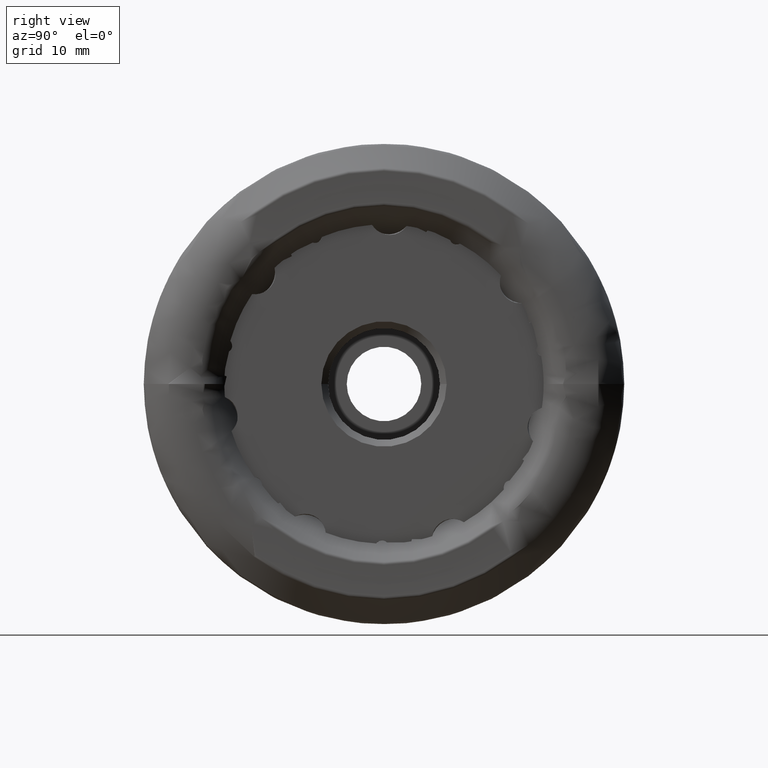
[diagram: clean part render]
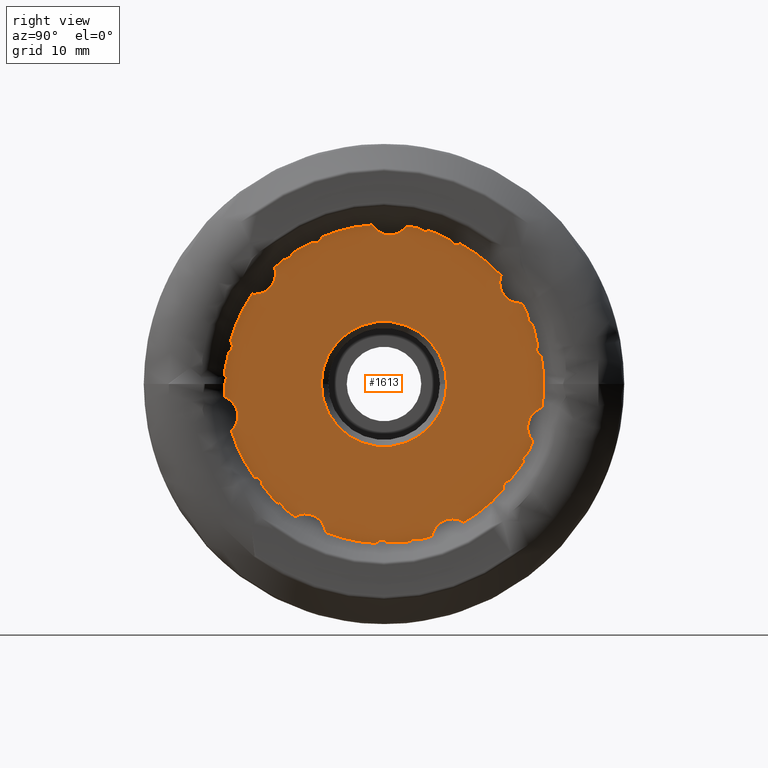
[diagram: same view with one face highlighted and labeled with its STEP entity id]
A machine part, right view. The second image highlights one B-rep face of the part: STEP entity #1613.
In plain terms, the highlighted planar face has unit normal (-1, -0, 0).
Its self-contained STEP definition (entity closure, byte-faithful):
#7 =( BOUNDED_CURVE ( )  B_SPLINE_CURVE ( 3, ( #12771, #5772, #2817, #9955 ),
 .UNSPECIFIED., .F., .F. ) 
 B_SPLINE_CURVE_WITH_KNOTS ( ( 4, 4 ),
 ( 0.1461564229964357800, 2.158327035329797200 ),
 .UNSPECIFIED. ) 
 CURVE ( )  GEOMETRIC_REPRESENTATION_ITEM ( )  RATIONAL_B_SPLINE_CURVE ( ( 1.000000000000000000, 0.6901144833169157200, 0.6901144833169157200, 1.000000000000000000 ) ) 
 REPRESENTATION_ITEM ( '' )  );
#17 = CARTESIAN_POINT ( 'NONE',  ( -2.000000000000000900, 21.50369078638228600, -9.771992317733328500 ) ) ;
#46 = EDGE_CURVE ( 'NONE', #9825, #7050, #67, .T. ) ;
#51 = DIRECTION ( 'NONE',  ( 1.000000000000000000, 1.171727135623460300E-016, -0.0000000000000000000 ) ) ;
#67 = LINE ( 'NONE', #4475, #5362 ) ;
#79 = DIRECTION ( 'NONE',  ( 1.000000000000000000, 1.171727135623460300E-016, -0.0000000000000000000 ) ) ;
#98 = VERTEX_POINT ( 'NONE', #9574 ) ;
#111 = CIRCLE ( 'NONE', #8650, 23.56486677876177500 ) ;
#117 = DIRECTION ( 'NONE',  ( -1.104222331657899600E-016, 1.000000000000000000, 0.0000000000000000000 ) ) ;
#137 = CARTESIAN_POINT ( 'NONE',  ( -1.999999999999998700, 4.948990714072315300, 23.03932371431106700 ) ) ;
#163 = VECTOR ( 'NONE', #10349, 1000.000000000000000 ) ;
#197 = CARTESIAN_POINT ( 'NONE',  ( -1.999999999999994900, 0.4226017762101578800, -23.37713243200000000 ) ) ;
#209 = EDGE_CURVE ( 'NONE', #7934, #1561, #10060, .T. ) ;
#337 = EDGE_CURVE ( 'NONE', #1981, #8421, #3436, .T. ) ;
#349 = DIRECTION ( 'NONE',  ( -1.104222331657899600E-016, 1.000000000000000000, 0.0000000000000000000 ) ) ;
#362 = CARTESIAN_POINT ( 'NONE',  ( -1.999999999999993100, -22.20470476483351500, 5.856439538509138600 ) ) ;
#365 = DIRECTION ( 'NONE',  ( 3.678892009413052500E-017, -0.2225209339563182200, 0.9749279121818227300 ) ) ;
#382 = ORIENTED_EDGE ( 'NONE', *, *, #1194, .F. ) ;
#390 = ORIENTED_EDGE ( 'NONE', *, *, #12286, .F. ) ;
#408 = DIRECTION ( 'NONE',  ( -3.678892009412834900E-017, 0.2225209339563050400, 0.9749279121818257300 ) ) ;
#409 = DIRECTION ( 'NONE',  ( 1.653279061886031000E-016, -1.000000000000000000, 0.0000000000000000000 ) ) ;
#438 = DIRECTION ( 'NONE',  ( -1.104222331657899600E-016, 1.000000000000000000, 0.0000000000000000000 ) ) ;
#452 = CIRCLE ( 'NONE', #10456, 23.56486677876177500 ) ;
#458 = ORIENTED_EDGE ( 'NONE', *, *, #5828, .T. ) ;
#493 = DIRECTION ( 'NONE',  ( 1.000000000000000000, 1.171727135623460300E-016, -0.0000000000000000000 ) ) ;
#524 = DIRECTION ( 'NONE',  ( 1.292585619887711100E-016, -0.7818314824680310200, 0.6234898018587320400 ) ) ;
#606 = CARTESIAN_POINT ( 'NONE',  ( -1.999999999999998200, -9.692287113181573900E-016, 0.0000000000000000000 ) ) ;
#621 = ORIENTED_EDGE ( 'NONE', *, *, #10964, .T. ) ;
#636 = VERTEX_POINT ( 'NONE', #5916 ) ;
#661 = CARTESIAN_POINT ( 'NONE',  ( -1.999999999999994900, -16.01633895878876100, 16.27629029937826400 ) ) ;
#665 = CARTESIAN_POINT ( 'NONE',  ( -2.000000000000004400, 23.30157998079163000, -3.512736354974612200 ) ) ;
#714 = CIRCLE ( 'NONE', #12784, 23.56486677876177500 ) ;
#745 = CIRCLE ( 'NONE', #1739, 23.56486677876177500 ) ;
#758 = DIRECTION ( 'NONE',  ( 1.000000000000000000, 1.171727135623460300E-016, -0.0000000000000000000 ) ) ;
#760 = DIRECTION ( 'NONE',  ( 1.011558380575088600E-032, -6.118497499273479500E-017, 1.000000000000000000 ) ) ;
#785 = VERTEX_POINT ( 'NONE', #7973 ) ;
#796 = VERTEX_POINT ( 'NONE', #3977 ) ;
#833 = CARTESIAN_POINT ( 'NONE',  ( -1.999999999999996700, -16.42608212106970100, -16.89635382124394200 ) ) ;
#842 = CARTESIAN_POINT ( 'NONE',  ( -1.999999999999996700, -12.81757981960705100, 19.77403838038129500 ) ) ;
#913 = CARTESIAN_POINT ( 'NONE',  ( -1.999999999999994400, -8.609754060583862100, -21.93570334675981900 ) ) ;
#930 = EDGE_LOOP ( 'NONE', ( #390, #11643 ) ) ;
#985 =( BOUNDED_CURVE ( )  B_SPLINE_CURVE ( 3, ( #6779, #12757, #12849, #6864 ),
 .UNSPECIFIED., .F., .F. ) 
 B_SPLINE_CURVE_WITH_KNOTS ( ( 4, 4 ),
 ( 0.7753974966107485300, 2.570844806628156800 ),
 .UNSPECIFIED. ) 
 CURVE ( )  GEOMETRIC_REPRESENTATION_ITEM ( )  RATIONAL_B_SPLINE_CURVE ( ( 1.000000000000000000, 0.7489276523373634700, 0.7489276523373634700, 1.000000000000000000 ) ) 
 REPRESENTATION_ITEM ( '' )  );
#1001 = EDGE_LOOP ( 'NONE', ( #10002, #2385, #5771, #458, #9855, #4978, #8352, #6601, #9830, #5076, #6013, #10681, #3749, #8272, #3657, #7807, #382, #4928, #3281, #1006, #11614, #9694, #7982, #11531, #5885, #9926, #9226, #4278, #4988, #8261, #2488, #8218, #3842, #2609, #11872, #621, #5896, #6299, #5415, #7142, #10722, #1885, #3388, #8052, #8347, #3428, #8988, #12039, #5433, #2832, #11837, #9835, #2889, #11353, #3060, #9009, #10694, #5456, #10005 ) ) ;
#1006 = ORIENTED_EDGE ( 'NONE', *, *, #2664, .T. ) ;
#1039 = CARTESIAN_POINT ( 'NONE',  ( -2.000000000003082000, -16.15035686524091600, 17.16009671959945500 ) ) ;
#1050 = AXIS2_PLACEMENT_3D ( 'NONE', #12313, #6331, #349 ) ;
#1061 = CARTESIAN_POINT ( 'NONE',  ( -1.999999999999994400, -19.46987895140102900, 13.27504274639373500 ) ) ;
#1189 = LINE ( 'NONE', #6392, #11799 ) ;
#1194 = EDGE_CURVE ( 'NONE', #1561, #9066, #8868, .T. ) ;
#1203 = CARTESIAN_POINT ( 'NONE',  ( -2.000000000003068700, -23.48588665943611900, -1.927712146759311000 ) ) ;
#1217 = CARTESIAN_POINT ( 'NONE',  ( -2.000000000003082900, 21.99645566941488200, -8.453335689780024300 ) ) ;
#1240 = VECTOR ( 'NONE', #7610, 1000.000000000000000 ) ;
#1268 = CARTESIAN_POINT ( 'NONE',  ( -1.999999999999996700, -0.7685947296030525300, -22.95116685276066100 ) ) ;
#1286 = CARTESIAN_POINT ( 'NONE',  ( -1.999999999999998200, 10.65061801459284800, 20.34480606122515000 ) ) ;
#1291 = DIRECTION ( 'NONE',  ( -1.489552964714235100E-016, 0.9009688679024218100, -0.4338837391175526200 ) ) ;
#1314 = CARTESIAN_POINT ( 'NONE',  ( -1.999999999999993100, -18.01349020744742200, -14.90580704124128400 ) ) ;
#1326 = VERTEX_POINT ( 'NONE', #833 ) ;
#1375 = CARTESIAN_POINT ( 'NONE',  ( -2.000000000000000000, 17.44674737808422900, 17.02072131289037300 ) ) ;
#1389 = CARTESIAN_POINT ( 'NONE',  ( -1.999999999999998200, 5.537501358987698900, -22.90500000000000100 ) ) ;
#1400 = EDGE_CURVE ( 'NONE', #9210, #11286, #2371, .T. ) ;
#1407 = VERTEX_POINT ( 'NONE', #6941 ) ;
#1429 = VERTEX_POINT ( 'NONE', #8949 ) ;
#1434 = EDGE_CURVE ( 'NONE', #7279, #5062, #9094, .T. ) ;
#1455 = VECTOR ( 'NONE', #6000, 1000.000000000000000 ) ;
#1510 = CARTESIAN_POINT ( 'NONE',  ( -1.999999999999994000, 17.27466535714831200, 16.02775352628465200 ) ) ;
#1561 = VERTEX_POINT ( 'NONE', #4258 ) ;
#1572 = CARTESIAN_POINT ( 'NONE',  ( -1.999999999999988000, -19.11783649036339500, -13.77720124802277200 ) ) ;
#1573 = VECTOR ( 'NONE', #524, 1000.000000000000000 ) ;
#1578 = EDGE_CURVE ( 'NONE', #1326, #9514, #11127, .T. ) ;
#1587 = CARTESIAN_POINT ( 'NONE',  ( -2.000000000003068700, -23.48588665943611900, -1.927712146759311000 ) ) ;
#1596 = EDGE_CURVE ( 'NONE', #9816, #4998, #3455, .T. ) ;
#1603 = DIRECTION ( 'NONE',  ( 1.000000000000000000, 1.171727135623460300E-016, -0.0000000000000000000 ) ) ;
#1613 = ADVANCED_FACE ( 'NONE', ( #10621, #6273 ), #7406, .F. ) ;
#1620 = DIRECTION ( 'NONE',  ( -1.104222331657899600E-016, 1.000000000000000000, 0.0000000000000000000 ) ) ;
#1635 = CARTESIAN_POINT ( 'NONE',  ( -1.999999999999998700, 9.250000000000000000, -22.90500000000000100 ) ) ;
#1662 = VERTEX_POINT ( 'NONE', #2497 ) ;
#1680 = CIRCLE ( 'NONE', #3221, 23.56486677876177500 ) ;
#1681 = CARTESIAN_POINT ( 'NONE',  ( -2.000000000000000000, 22.32186318714226300, 5.023630011642295800 ) ) ;
#1693 = EDGE_CURVE ( 'NONE', #7050, #10297, #5639, .T. ) ;
#1739 = AXIS2_PLACEMENT_3D ( 'NONE', #10343, #4375, #11342 ) ;
#1748 =( BOUNDED_CURVE ( )  B_SPLINE_CURVE ( 3, ( #5420, #7372, #362, #6426 ),
 .UNSPECIFIED., .F., .F. ) 
 B_SPLINE_CURVE_WITH_KNOTS ( ( 4, 4 ),
 ( 0.7753974966107506400, 2.570844806628151100 ),
 .UNSPECIFIED. ) 
 CURVE ( )  GEOMETRIC_REPRESENTATION_ITEM ( )  RATIONAL_B_SPLINE_CURVE ( ( 1.000000000000000000, 0.7489276523373655800, 0.7489276523373655800, 1.000000000000000000 ) ) 
 REPRESENTATION_ITEM ( '' )  );
#1758 = DIRECTION ( 'NONE',  ( -1.489552964714225300E-016, 0.9009688679024157000, 0.4338837391175651700 ) ) ;
#1774 = CARTESIAN_POINT ( 'NONE',  ( -1.999999999999993100, -10.52370867332828100, 20.87870850324410200 ) ) ;
#1790 = CARTESIAN_POINT ( 'NONE',  ( -2.000000000000002700, 21.43091610487660900, 9.039157215310337900 ) ) ;
#1885 = ORIENTED_EDGE ( 'NONE', *, *, #5706, .F. ) ;
#1906 = CARTESIAN_POINT ( 'NONE',  ( -2.000000000000000000, 9.250000000000000000, 0.0000000000000000000 ) ) ;
#1945 = CARTESIAN_POINT ( 'NONE',  ( -2.000000000000001300, 20.42905532178830400, -11.11954256777991600 ) ) ;
#1959 = VERTEX_POINT ( 'NONE', #3290 ) ;
#1981 = VERTEX_POINT ( 'NONE', #5298 ) ;
#2007 = VERTEX_POINT ( 'NONE', #6389 ) ;
#2025 = CARTESIAN_POINT ( 'NONE',  ( -2.000000000000000900, 22.13044178610697800, 8.096078844262852000 ) ) ;
#2050 = CARTESIAN_POINT ( 'NONE',  ( -1.999999999999995300, -16.06134589859433200, 16.87359393577513000 ) ) ;
#2082 = EDGE_CURVE ( 'NONE', #10369, #1429, #7838, .T. ) ;
#2095 = CARTESIAN_POINT ( 'NONE',  ( -2.000000000000000900, -1.760424619383038400, 23.49901809566221500 ) ) ;
#2249 = VERTEX_POINT ( 'NONE', #3980 ) ;
#2250 = CARTESIAN_POINT ( 'NONE',  ( -2.000000000000004400, 23.30157998079163000, -3.512736354974612200 ) ) ;
#2315 =( BOUNDED_CURVE ( )  B_SPLINE_CURVE ( 3, ( #1217, #5214, #8243, #2250 ),
 .UNSPECIFIED., .F., .T. ) 
 B_SPLINE_CURVE_WITH_KNOTS ( ( 4, 4 ),
 ( 0.1461564229964352500, 2.158327035329792300 ),
 .UNSPECIFIED. ) 
 CURVE ( )  GEOMETRIC_REPRESENTATION_ITEM ( )  RATIONAL_B_SPLINE_CURVE ( ( 1.000000000000000000, 0.6901144833169170500, 0.6901144833169170500, 1.000000000000000000 ) ) 
 REPRESENTATION_ITEM ( '' )  );
#2348 =( BOUNDED_CURVE ( )  B_SPLINE_CURVE ( 3, ( #7533, #5497, #8527, #2531 ),
 .UNSPECIFIED., .F., .F. ) 
 B_SPLINE_CURVE_WITH_KNOTS ( ( 4, 4 ),
 ( 0.7753974966107519700, 2.570844806628149300 ),
 .UNSPECIFIED. ) 
 CURVE ( )  GEOMETRIC_REPRESENTATION_ITEM ( )  RATIONAL_B_SPLINE_CURVE ( ( 1.000000000000000000, 0.7489276523373664700, 0.7489276523373664700, 1.000000000000000000 ) ) 
 REPRESENTATION_ITEM ( '' )  );
#2351 = DIRECTION ( 'NONE',  ( -3.678892009413052500E-017, 0.2225209339563182200, -0.9749279121818227300 ) ) ;
#2369 = DIRECTION ( 'NONE',  ( 1.030802634712530300E-016, -0.6234898018587431400, 0.7818314824680220300 ) ) ;
#2371 = LINE ( 'NONE', #9894, #5342 ) ;
#2385 = ORIENTED_EDGE ( 'NONE', *, *, #9207, .T. ) ;
#2411 = VERTEX_POINT ( 'NONE', #4044 ) ;
#2488 = ORIENTED_EDGE ( 'NONE', *, *, #1693, .T. ) ;
#2497 = CARTESIAN_POINT ( 'NONE',  ( -1.999999999999994000, 17.27466535714831200, 16.02775352628465200 ) ) ;
#2531 = CARTESIAN_POINT ( 'NONE',  ( -1.999999999999988000, -19.11783649036339500, -13.77720124802277200 ) ) ;
#2544 = CARTESIAN_POINT ( 'NONE',  ( -2.000000000000000400, 11.78192961329005700, -20.40806411417479500 ) ) ;
#2547 = CARTESIAN_POINT ( 'NONE',  ( -1.999999999999998200, -9.692287113181573900E-016, 0.0000000000000000000 ) ) ;
#2558 = DIRECTION ( 'NONE',  ( 1.000000000000000000, 1.171727135623460300E-016, -0.0000000000000000000 ) ) ;
#2564 = CARTESIAN_POINT ( 'NONE',  ( -1.999999999999998200, -9.692287113181573900E-016, 0.0000000000000000000 ) ) ;
#2584 = CARTESIAN_POINT ( 'NONE',  ( -1.999999999999998200, 20.09540539221797700, 11.91818211773242100 ) ) ;
#2609 = ORIENTED_EDGE ( 'NONE', *, *, #4200, .F. ) ;
#2618 = VECTOR ( 'NONE', #2351, 1000.000000000000000 ) ;
#2664 = EDGE_CURVE ( 'NONE', #2411, #2249, #3433, .T. ) ;
#2673 = CARTESIAN_POINT ( 'NONE',  ( -2.000000000000000000, 22.69698117279385500, 5.613907609354075800 ) ) ;
#2692 = EDGE_CURVE ( 'NONE', #4998, #9168, #1748, .T. ) ;
#2705 = CARTESIAN_POINT ( 'NONE',  ( -1.999999999999994900, -9.864758962872423700, 20.64434463100725400 ) ) ;
#2739 = CARTESIAN_POINT ( 'NONE',  ( -1.999999999999994400, -19.46987895140102900, 13.27504274639373500 ) ) ;
#2779 = LINE ( 'NONE', #8363, #7789 ) ;
#2811 = DIRECTION ( 'NONE',  ( 1.000000000000000000, 1.653279061886031000E-016, -0.0000000000000000000 ) ) ;
#2817 = CARTESIAN_POINT ( 'NONE',  ( -1.999999999999997300, -0.4953517499483098300, 21.38361911109226600 ) ) ;
#2832 = ORIENTED_EDGE ( 'NONE', *, *, #12036, .F. ) ;
#2842 = CARTESIAN_POINT ( 'NONE',  ( -2.000000000003075800, 7.105481812777243000, -22.46809013932725900 ) ) ;
#2861 = CARTESIAN_POINT ( 'NONE',  ( -1.999999999999998200, 7.892173290400736900, -5.949027516459504600 ) ) ;
#2889 = ORIENTED_EDGE ( 'NONE', *, *, #7691, .T. ) ;
#2971 = EDGE_CURVE ( 'NONE', #1662, #8421, #3910, .T. ) ;
#3014 = DIRECTION ( 'NONE',  ( -1.030802634712511800E-016, 0.6234898018587320400, 0.7818314824680310200 ) ) ;
#3025 = VERTEX_POINT ( 'NONE', #8661 ) ;
#3060 = ORIENTED_EDGE ( 'NONE', *, *, #11136, .T. ) ;
#3096 = VERTEX_POINT ( 'NONE', #8711 ) ;
#3119 = VERTEX_POINT ( 'NONE', #1945 ) ;
#3126 = DIRECTION ( 'NONE',  ( 1.000000000000000000, 1.171727135623460300E-016, -0.0000000000000000000 ) ) ;
#3221 = AXIS2_PLACEMENT_3D ( 'NONE', #5552, #12560, #6578 ) ;
#3252 = AXIS2_PLACEMENT_3D ( 'NONE', #7578, #1603, #8578 ) ;
#3275 = EDGE_CURVE ( 'NONE', #98, #11009, #452, .T. ) ;
#3281 = ORIENTED_EDGE ( 'NONE', *, *, #12023, .T. ) ;
#3290 = CARTESIAN_POINT ( 'NONE',  ( -1.999999999999994900, 23.20227909153350900, 4.117911031017719400 ) ) ;
#3388 = ORIENTED_EDGE ( 'NONE', *, *, #12358, .F. ) ;
#3398 = CARTESIAN_POINT ( 'NONE',  ( -2.000000000000000900, 23.56486677876177500, 0.0000000000000000000 ) ) ;
#3399 = EDGE_CURVE ( 'NONE', #2249, #12014, #12489, .T. ) ;
#3420 = CARTESIAN_POINT ( 'NONE',  ( -1.999999999999998700, 9.250000000000000000, 0.0000000000000000000 ) ) ;
#3428 = ORIENTED_EDGE ( 'NONE', *, *, #4646, .T. ) ;
#3433 = LINE ( 'NONE', #12340, #5792 ) ;
#3436 =( BOUNDED_CURVE ( )  B_SPLINE_CURVE ( 3, ( #6239, #7263, #1286, #8262 ),
 .UNSPECIFIED., .F., .F. ) 
 B_SPLINE_CURVE_WITH_KNOTS ( ( 4, 4 ),
 ( 0.7753974966107530800, 2.570844806628152800 ),
 .UNSPECIFIED. ) 
 CURVE ( )  GEOMETRIC_REPRESENTATION_ITEM ( )  RATIONAL_B_SPLINE_CURVE ( ( 1.000000000000000000, 0.7489276523373658000, 0.7489276523373658000, 1.000000000000000000 ) ) 
 REPRESENTATION_ITEM ( '' )  );
#3455 = LINE ( 'NONE', #12381, #10818 ) ;
#3478 = EDGE_CURVE ( 'NONE', #4984, #9210, #4211, .T. ) ;
#3552 = DIRECTION ( 'NONE',  ( -1.104222331657899600E-016, 1.000000000000000000, 0.0000000000000000000 ) ) ;
#3561 = CARTESIAN_POINT ( 'NONE',  ( -2.000000000003082900, 21.99645566941488200, -8.453335689780024300 ) ) ;
#3573 = CARTESIAN_POINT ( 'NONE',  ( -2.000000000003073100, -13.13606477429599600, -19.56391444844673800 ) ) ;
#3638 = EDGE_CURVE ( 'NONE', #8969, #6513, #11535, .T. ) ;
#3657 = ORIENTED_EDGE ( 'NONE', *, *, #8887, .T. ) ;
#3659 = VERTEX_POINT ( 'NONE', #1572 ) ;
#3669 = VERTEX_POINT ( 'NONE', #10537 ) ;
#3749 = ORIENTED_EDGE ( 'NONE', *, *, #7630, .T. ) ;
#3842 = ORIENTED_EDGE ( 'NONE', *, *, #10411, .T. ) ;
#3875 = CARTESIAN_POINT ( 'NONE',  ( -1.999999999999994900, -11.01796890392451200, -18.33529850907320500 ) ) ;
#3910 = CIRCLE ( 'NONE', #11629, 23.56486677876177500 ) ;
#3953 = DIRECTION ( 'NONE',  ( 1.000000000000000000, 1.171727135623460300E-016, -0.0000000000000000000 ) ) ;
#3977 = CARTESIAN_POINT ( 'NONE',  ( -1.999999999999997800, 2.968606669386217000, -23.37713243200000000 ) ) ;
#3980 = CARTESIAN_POINT ( 'NONE',  ( -1.999999999999995800, -13.58135413900240700, 18.88219658854230300 ) ) ;
#4044 = CARTESIAN_POINT ( 'NONE',  ( -1.999999999999996200, -13.71600030822957600, 19.16179223990899800 ) ) ;
#4077 = CARTESIAN_POINT ( 'NONE',  ( -2.000000000003074900, 3.346721055722366300, 23.32600275391880000 ) ) ;
#4127 = DIRECTION ( 'NONE',  ( 1.000000000000000000, 1.171727135623460300E-016, -0.0000000000000000000 ) ) ;
#4183 = DIRECTION ( 'NONE',  ( 1.030802634712512000E-016, -0.6234898018587320400, -0.7818314824680309100 ) ) ;
#4200 = EDGE_CURVE ( 'NONE', #9514, #3659, #2348, .T. ) ;
#4211 = CIRCLE ( 'NONE', #12907, 23.56486677876177500 ) ;
#4224 = LINE ( 'NONE', #12497, #1573 ) ;
#4242 = CARTESIAN_POINT ( 'NONE',  ( -2.000000000000002200, 21.73346330084872200, 9.108211638486009700 ) ) ;
#4258 = CARTESIAN_POINT ( 'NONE',  ( -1.999999999999993100, -10.52370867332828100, 20.87870850324410200 ) ) ;
#4259 = CARTESIAN_POINT ( 'NONE',  ( -1.999999999999998200, -3.306558123772058100E-016, 0.0000000000000000000 ) ) ;
#4274 = VERTEX_POINT ( 'NONE', #7460 ) ;
#4278 = ORIENTED_EDGE ( 'NONE', *, *, #5516, .T. ) ;
#4283 = DIRECTION ( 'NONE',  ( 1.000000000000000000, 1.171727135623460300E-016, -0.0000000000000000000 ) ) ;
#4332 = DIRECTION ( 'NONE',  ( 1.000000000000000000, 1.171727135623460300E-016, -0.0000000000000000000 ) ) ;
#4337 = VERTEX_POINT ( 'NONE', #2544 ) ;
#4363 = VERTEX_POINT ( 'NONE', #7684 ) ;
#4375 = DIRECTION ( 'NONE',  ( 1.000000000000000000, 1.171727135623460300E-016, -0.0000000000000000000 ) ) ;
#4437 = AXIS2_PLACEMENT_3D ( 'NONE', #6750, #758, #7752 ) ;
#4475 = CARTESIAN_POINT ( 'NONE',  ( -1.999999999999993600, -21.87270484257344800, 7.103554285687793300 ) ) ;
#4490 =( BOUNDED_CURVE ( )  B_SPLINE_CURVE ( 3, ( #1039, #2050, #11031, #5045 ),
 .UNSPECIFIED., .F., .T. ) 
 B_SPLINE_CURVE_WITH_KNOTS ( ( 4, 4 ),
 ( 0.1461564229964404900, 0.4449876211303597200 ),
 .UNSPECIFIED. ) 
 CURVE ( )  GEOMETRIC_REPRESENTATION_ITEM ( )  RATIONAL_B_SPLINE_CURVE ( ( 1.000000000000000000, 0.9925721605802505500, 0.9925721605802505500, 1.000000000000000000 ) ) 
 REPRESENTATION_ITEM ( '' )  );
#4646 = EDGE_CURVE ( 'NONE', #3096, #5908, #9493, .T. ) ;
#4658 = VERTEX_POINT ( 'NONE', #665 ) ;
#4679 = VERTEX_POINT ( 'NONE', #2673 ) ;
#4754 = VECTOR ( 'NONE', #1758, 1000.000000000000100 ) ;
#4775 = EDGE_CURVE ( 'NONE', #5590, #9066, #5905, .T. ) ;
#4813 = VERTEX_POINT ( 'NONE', #1061 ) ;
#4844 = DIRECTION ( 'NONE',  ( 1.000000000000000000, 1.171727135623460300E-016, -0.0000000000000000000 ) ) ;
#4863 = CIRCLE ( 'NONE', #12342, 23.56486677876177500 ) ;
#4918 = EDGE_CURVE ( 'NONE', #4984, #1981, #10276, .T. ) ;
#4928 = ORIENTED_EDGE ( 'NONE', *, *, #209, .F. ) ;
#4978 = ORIENTED_EDGE ( 'NONE', *, *, #2082, .T. ) ;
#4984 = VERTEX_POINT ( 'NONE', #5323 ) ;
#4988 = ORIENTED_EDGE ( 'NONE', *, *, #10128, .T. ) ;
#4998 = VERTEX_POINT ( 'NONE', #6328 ) ;
#5045 = CARTESIAN_POINT ( 'NONE',  ( -1.999999999999994900, -16.01633895878876100, 16.27629029937826400 ) ) ;
#5062 = VERTEX_POINT ( 'NONE', #6412 ) ;
#5076 = ORIENTED_EDGE ( 'NONE', *, *, #4918, .F. ) ;
#5089 = EDGE_CURVE ( 'NONE', #785, #7279, #11689, .T. ) ;
#5121 = LINE ( 'NONE', #17, #7472 ) ;
#5136 = CARTESIAN_POINT ( 'NONE',  ( -1.999999999999998200, -9.692287113181573900E-016, 0.0000000000000000000 ) ) ;
#5185 = EDGE_CURVE ( 'NONE', #3119, #9775, #5121, .T. ) ;
#5212 = CARTESIAN_POINT ( 'NONE',  ( -1.999999999999996700, -0.06940472522369046900, -22.88007031509052400 ) ) ;
#5214 = CARTESIAN_POINT ( 'NONE',  ( -2.000000000000000900, 20.32732302548409800, -6.661737671380805600 ) ) ;
#5242 = CARTESIAN_POINT ( 'NONE',  ( -2.000000000000000000, 17.65159796303905200, 17.44609793564942600 ) ) ;
#5261 = DIRECTION ( 'NONE',  ( -1.875376730785737500E-016, 1.000000000000000000, 0.0000000000000000000 ) ) ;
#5266 = VECTOR ( 'NONE', #11839, 1000.000000000000000 ) ;
#5269 = DIRECTION ( 'NONE',  ( 1.000000000000000000, 1.171727135623460300E-016, -0.0000000000000000000 ) ) ;
#5298 = CARTESIAN_POINT ( 'NONE',  ( -1.999999999999994900, 9.762206585556748800, 21.24542858088381100 ) ) ;
#5312 = CARTESIAN_POINT ( 'NONE',  ( -2.000000000003075800, 7.105481812777243000, -22.46809013932725900 ) ) ;
#5323 = CARTESIAN_POINT ( 'NONE',  ( -1.999999999999999100, 7.468335439277913300, 22.35009870374661000 ) ) ;
#5330 = EDGE_CURVE ( 'NONE', #8846, #2007, #5563, .T. ) ;
#5342 = VECTOR ( 'NONE', #11903, 1000.000000000000000 ) ;
#5362 = VECTOR ( 'NONE', #11444, 1000.000000000000000 ) ;
#5415 = ORIENTED_EDGE ( 'NONE', *, *, #10425, .T. ) ;
#5420 = CARTESIAN_POINT ( 'NONE',  ( -1.999999999999991300, -22.88505665666168600, 4.789895074623967000 ) ) ;
#5433 = ORIENTED_EDGE ( 'NONE', *, *, #8710, .T. ) ;
#5448 =( BOUNDED_CURVE ( )  B_SPLINE_CURVE ( 3, ( #6470, #9437, #7500, #1510 ),
 .UNSPECIFIED., .F., .F. ) 
 B_SPLINE_CURVE_WITH_KNOTS ( ( 4, 4 ),
 ( 0.2222871971657807100, 2.158327035329799400 ),
 .UNSPECIFIED. ) 
 CURVE ( )  GEOMETRIC_REPRESENTATION_ITEM ( )  RATIONAL_B_SPLINE_CURVE ( ( 1.000000000000000000, 0.7112878415754636500, 0.7112878415754636500, 1.000000000000000000 ) ) 
 REPRESENTATION_ITEM ( '' )  );
#5456 = ORIENTED_EDGE ( 'NONE', *, *, #6933, .T. ) ;
#5479 = EDGE_CURVE ( 'NONE', #10996, #4337, #6120, .T. ) ;
#5497 = CARTESIAN_POINT ( 'NONE',  ( -1.999999999999993100, -17.93163243179759900, -14.21122770805798700 ) ) ;
#5516 = EDGE_CURVE ( 'NONE', #9816, #1407, #6686, .T. ) ;
#5527 = LINE ( 'NONE', #7706, #7906 ) ;
#5552 = CARTESIAN_POINT ( 'NONE',  ( -1.999999999999998200, -9.692287113181573900E-016, 0.0000000000000000000 ) ) ;
#5563 = LINE ( 'NONE', #10169, #11207 ) ;
#5590 = VERTEX_POINT ( 'NONE', #2095 ) ;
#5597 = DIRECTION ( 'NONE',  ( 1.000000000000000000, 1.171727135623460300E-016, -0.0000000000000000000 ) ) ;
#5639 = CIRCLE ( 'NONE', #3252, 23.56486677876177500 ) ;
#5667 = CARTESIAN_POINT ( 'NONE',  ( -1.999999999999994900, 23.20227909153350900, 4.117911031017719400 ) ) ;
#5706 = EDGE_CURVE ( 'NONE', #6457, #11009, #11083, .T. ) ;
#5728 = CARTESIAN_POINT ( 'NONE',  ( -2.000000000000000900, 20.12787408925412100, -12.25445351486238000 ) ) ;
#5771 = ORIENTED_EDGE ( 'NONE', *, *, #6491, .T. ) ;
#5772 = CARTESIAN_POINT ( 'NONE',  ( -1.999999999999998000, 1.971459094999782300, 21.30005068588833700 ) ) ;
#5792 = VECTOR ( 'NONE', #9401, 1000.000000000000100 ) ;
#5825 = CARTESIAN_POINT ( 'NONE',  ( -1.999999999999995800, -23.45159604334853800, 2.307723839715149600 ) ) ;
#5828 = EDGE_CURVE ( 'NONE', #8438, #636, #2779, .T. ) ;
#5831 = CARTESIAN_POINT ( 'NONE',  ( -1.999999999999998000, 9.724301121150691800, -19.05105003273138600 ) ) ;
#5832 = EDGE_CURVE ( 'NONE', #636, #10369, #111, .T. ) ;
#5834 = CARTESIAN_POINT ( 'NONE',  ( -2.000000000003073100, -13.13606477429599600, -19.56391444844673800 ) ) ;
#5860 = VERTEX_POINT ( 'NONE', #3561 ) ;
#5885 = ORIENTED_EDGE ( 'NONE', *, *, #12209, .T. ) ;
#5896 = ORIENTED_EDGE ( 'NONE', *, *, #5089, .T. ) ;
#5905 = CIRCLE ( 'NONE', #6976, 23.56486677876177500 ) ;
#5908 = VERTEX_POINT ( 'NONE', #1389 ) ;
#5916 = CARTESIAN_POINT ( 'NONE',  ( -2.000000000000000900, 21.09851385433833200, 10.49550663089132700 ) ) ;
#6000 = DIRECTION ( 'NONE',  ( -1.030802634712530200E-016, 0.6234898018587431400, -0.7818314824680221400 ) ) ;
#6013 = ORIENTED_EDGE ( 'NONE', *, *, #3478, .T. ) ;
#6024 = CARTESIAN_POINT ( 'NONE',  ( -1.999999999999998200, -9.692287113181573900E-016, 0.0000000000000000000 ) ) ;
#6050 = CARTESIAN_POINT ( 'NONE',  ( -1.999999999999998200, -9.692287113181573900E-016, 0.0000000000000000000 ) ) ;
#6093 = DIRECTION ( 'NONE',  ( 1.000000000000000000, 1.171727135623460300E-016, -0.0000000000000000000 ) ) ;
#6120 =( BOUNDED_CURVE ( )  B_SPLINE_CURVE ( 3, ( #2842, #8827, #5831, #12844 ),
 .UNSPECIFIED., .F., .T. ) 
 B_SPLINE_CURVE_WITH_KNOTS ( ( 4, 4 ),
 ( 0.1461564229964363000, 2.158327035329802100 ),
 .UNSPECIFIED. ) 
 CURVE ( )  GEOMETRIC_REPRESENTATION_ITEM ( )  RATIONAL_B_SPLINE_CURVE ( ( 1.000000000000000000, 0.6901144833169146100, 0.6901144833169146100, 1.000000000000000000 ) ) 
 REPRESENTATION_ITEM ( '' )  );
#6130 = DIRECTION ( 'NONE',  ( -1.104222331657899600E-016, 1.000000000000000000, 0.0000000000000000000 ) ) ;
#6239 = CARTESIAN_POINT ( 'NONE',  ( -1.999999999999994900, 9.762206585556748800, 21.24542858088381100 ) ) ;
#6273 = FACE_OUTER_BOUND ( 'NONE', #1001, .T. ) ;
#6299 = ORIENTED_EDGE ( 'NONE', *, *, #1434, .T. ) ;
#6328 = CARTESIAN_POINT ( 'NONE',  ( -1.999999999999991300, -22.88505665666168600, 4.789895074623967000 ) ) ;
#6330 = VERTEX_POINT ( 'NONE', #12554 ) ;
#6331 = DIRECTION ( 'NONE',  ( 1.000000000000000000, 1.171727135623460300E-016, -0.0000000000000000000 ) ) ;
#6368 = CARTESIAN_POINT ( 'NONE',  ( -1.999999999999990500, -22.69122576134634900, 6.356981968544659800 ) ) ;
#6369 = VECTOR ( 'NONE', #8470, 1000.000000000000100 ) ;
#6389 = CARTESIAN_POINT ( 'NONE',  ( -1.999999999999998200, 18.54046600287646700, -14.24500029486500800 ) ) ;
#6392 = CARTESIAN_POINT ( 'NONE',  ( -1.999999999999998700, 9.250000000000000000, -23.37713243200000000 ) ) ;
#6412 = CARTESIAN_POINT ( 'NONE',  ( -1.999999999999996700, -14.45527448082230200, -18.61042680824053300 ) ) ;
#6420 = DIRECTION ( 'NONE',  ( 1.000000000000000000, 1.171727135623460300E-016, -0.0000000000000000000 ) ) ;
#6426 = CARTESIAN_POINT ( 'NONE',  ( -1.999999999999990500, -22.69122576134634900, 6.356981968544659800 ) ) ;
#6428 = DIRECTION ( 'NONE',  ( 1.653279061886031000E-016, -1.000000000000000000, 0.0000000000000000000 ) ) ;
#6432 = CARTESIAN_POINT ( 'NONE',  ( -1.999999999999997100, -2.429466710891245100, 24.25266252571951500 ) ) ;
#6445 = CARTESIAN_POINT ( 'NONE',  ( -1.999999999999999600, 6.429506119200096800, 22.67078290143414800 ) ) ;
#6448 = CARTESIAN_POINT ( 'NONE',  ( -1.999999999999998700, 8.175364535405933000, 1.347550250046658100 ) ) ;
#6457 = VERTEX_POINT ( 'NONE', #11896 ) ;
#6466 = CARTESIAN_POINT ( 'NONE',  ( -1.999999999999998200, -9.692287113181573900E-016, 0.0000000000000000000 ) ) ;
#6470 = CARTESIAN_POINT ( 'NONE',  ( -1.999999999999998200, 20.09540539221797700, 11.91818211773242100 ) ) ;
#6484 = AXIS2_PLACEMENT_3D ( 'NONE', #10112, #4127, #11121 ) ;
#6491 = EDGE_CURVE ( 'NONE', #9033, #8438, #10730, .T. ) ;
#6513 = VERTEX_POINT ( 'NONE', #4077 ) ;
#6562 = CARTESIAN_POINT ( 'NONE',  ( -2.000000000003075300, 20.32364976105849800, 11.92695295079468000 ) ) ;
#6578 = DIRECTION ( 'NONE',  ( -1.104222331657899600E-016, 1.000000000000000000, 0.0000000000000000000 ) ) ;
#6591 = CARTESIAN_POINT ( 'NONE',  ( -1.999999999999994400, -22.51811731986202900, -6.945310552431750200 ) ) ;
#6601 = ORIENTED_EDGE ( 'NONE', *, *, #2971, .T. ) ;
#6672 = EDGE_CURVE ( 'NONE', #5908, #10996, #10325, .T. ) ;
#6686 = CIRCLE ( 'NONE', #8237, 23.56486677876177500 ) ;
#6750 = CARTESIAN_POINT ( 'NONE',  ( -1.999999999999998200, -9.692287113181573900E-016, 0.0000000000000000000 ) ) ;
#6779 = CARTESIAN_POINT ( 'NONE',  ( -1.999999999999998200, 18.54046600287646700, -14.24500029486500800 ) ) ;
#6864 = CARTESIAN_POINT ( 'NONE',  ( -1.999999999999998200, 17.68589687950326100, -15.57279672596952500 ) ) ;
#6903 = EDGE_CURVE ( 'NONE', #3669, #11511, #4490, .T. ) ;
#6912 = CARTESIAN_POINT ( 'NONE',  ( -1.999999999999995600, -8.831708110421850200, -19.48090017162338600 ) ) ;
#6933 = EDGE_CURVE ( 'NONE', #10457, #1959, #12845, .T. ) ;
#6939 = EDGE_CURVE ( 'NONE', #4658, #10457, #4863, .T. ) ;
#6941 = CARTESIAN_POINT ( 'NONE',  ( -1.999999999999994400, -23.53307874814482800, 1.223581192403959700 ) ) ;
#6976 = AXIS2_PLACEMENT_3D ( 'NONE', #6024, #51, #7059 ) ;
#7020 = EDGE_CURVE ( 'NONE', #5860, #4658, #2315, .T. ) ;
#7050 = VERTEX_POINT ( 'NONE', #7244 ) ;
#7059 = DIRECTION ( 'NONE',  ( -1.104222331657899600E-016, 1.000000000000000000, 0.0000000000000000000 ) ) ;
#7079 = DIRECTION ( 'NONE',  ( -1.104222331657899600E-016, 1.000000000000000000, 0.0000000000000000000 ) ) ;
#7127 = CIRCLE ( 'NONE', #9856, 9.250000000000000000 ) ;
#7142 = ORIENTED_EDGE ( 'NONE', *, *, #12064, .T. ) ;
#7194 = EDGE_CURVE ( 'NONE', #1429, #1662, #5448, .T. ) ;
#7244 = CARTESIAN_POINT ( 'NONE',  ( -1.999999999999995800, -23.56293380271096900, -0.3018226463527076700 ) ) ;
#7263 = CARTESIAN_POINT ( 'NONE',  ( -1.999999999999998200, 9.989821956295864800, 20.58411746762244500 ) ) ;
#7279 = VERTEX_POINT ( 'NONE', #7620 ) ;
#7327 = CIRCLE ( 'NONE', #9395, 23.56486677876177500 ) ;
#7341 = CARTESIAN_POINT ( 'NONE',  ( -1.999999999999988000, -1.148326409342590700, -23.53687092113982600 ) ) ;
#7372 = CARTESIAN_POINT ( 'NONE',  ( -1.999999999999993100, -22.29097517858681600, 5.158959219357758000 ) ) ;
#7406 = PLANE ( 'NONE',  #12890 ) ;
#7460 = CARTESIAN_POINT ( 'NONE',  ( -1.999999999999996700, -9.250000000000000000, 1.132798289211301700E-015 ) ) ;
#7472 = VECTOR ( 'NONE', #3014, 1000.000000000000000 ) ;
#7493 = DIRECTION ( 'NONE',  ( -1.104222331657899600E-016, 1.000000000000000000, 0.0000000000000000000 ) ) ;
#7500 = CARTESIAN_POINT ( 'NONE',  ( -1.999999999999997100, 16.45613776530702300, 13.84406508116100900 ) ) ;
#7533 = CARTESIAN_POINT ( 'NONE',  ( -1.999999999999993100, -18.01349020744742200, -14.90580704124128400 ) ) ;
#7570 = AXIS2_PLACEMENT_3D ( 'NONE', #6466, #493, #7493 ) ;
#7578 = CARTESIAN_POINT ( 'NONE',  ( -1.999999999999998200, -9.692287113181573900E-016, 0.0000000000000000000 ) ) ;
#7598 = DIRECTION ( 'NONE',  ( 1.000000000000000000, 1.171727135623460300E-016, -0.0000000000000000000 ) ) ;
#7610 = DIRECTION ( 'NONE',  ( -1.653279061886031000E-016, 1.000000000000000000, 0.0000000000000000000 ) ) ;
#7620 = CARTESIAN_POINT ( 'NONE',  ( -1.999999999999995800, -15.38664489007195300, -17.44252525536882100 ) ) ;
#7630 = EDGE_CURVE ( 'NONE', #11286, #8969, #8149, .T. ) ;
#7636 = VECTOR ( 'NONE', #1291, 1000.000000000000000 ) ;
#7678 = AXIS2_PLACEMENT_3D ( 'NONE', #8800, #2811, #9795 ) ;
#7684 = CARTESIAN_POINT ( 'NONE',  ( -1.999999999999994400, -22.51811731986202900, -6.945310552431750200 ) ) ;
#7691 = EDGE_CURVE ( 'NONE', #3025, #3119, #4224, .T. ) ;
#7706 = CARTESIAN_POINT ( 'NONE',  ( -1.999999999999997800, 4.043699204609118200, -3.185473839706463600E-016 ) ) ;
#7723 = CARTESIAN_POINT ( 'NONE',  ( -2.000000000000000900, 21.36042573103792500, -9.951641014908217300 ) ) ;
#7752 = DIRECTION ( 'NONE',  ( -1.104222331657899600E-016, 1.000000000000000000, 0.0000000000000000000 ) ) ;
#7759 = VERTEX_POINT ( 'NONE', #3573 ) ;
#7789 = VECTOR ( 'NONE', #365, 1000.000000000000000 ) ;
#7807 = ORIENTED_EDGE ( 'NONE', *, *, #4775, .T. ) ;
#7838 =( BOUNDED_CURVE ( )  B_SPLINE_CURVE ( 3, ( #6562, #12378, #8569, #2584 ),
 .UNSPECIFIED., .F., .T. ) 
 B_SPLINE_CURVE_WITH_KNOTS ( ( 4, 4 ),
 ( 0.1461564229964356900, 0.2222871971657807100 ),
 .UNSPECIFIED. ) 
 CURVE ( )  GEOMETRIC_REPRESENTATION_ITEM ( )  RATIONAL_B_SPLINE_CURVE ( ( 1.000000000000000000, 0.9995170670860136200, 0.9995170670860136200, 1.000000000000000000 ) ) 
 REPRESENTATION_ITEM ( '' )  );
#7860 = CARTESIAN_POINT ( 'NONE',  ( -1.999999999999994000, -23.23053155217271000, 1.154526769228290600 ) ) ;
#7863 = EDGE_CURVE ( 'NONE', #8846, #3025, #8590, .T. ) ;
#7874 =( BOUNDED_CURVE ( )  B_SPLINE_CURVE ( 3, ( #10648, #1681, #11660, #5667 ),
 .UNSPECIFIED., .F., .F. ) 
 B_SPLINE_CURVE_WITH_KNOTS ( ( 4, 4 ),
 ( 0.7753974966107499700, 2.570844806628154600 ),
 .UNSPECIFIED. ) 
 CURVE ( )  GEOMETRIC_REPRESENTATION_ITEM ( )  RATIONAL_B_SPLINE_CURVE ( ( 1.000000000000000000, 0.7489276523373644700, 0.7489276523373644700, 1.000000000000000000 ) ) 
 REPRESENTATION_ITEM ( '' )  );
#7906 = VECTOR ( 'NONE', #760, 1000.000000000000000 ) ;
#7920 = AXIS2_PLACEMENT_3D ( 'NONE', #10312, #4332, #11313 ) ;
#7934 = VERTEX_POINT ( 'NONE', #842 ) ;
#7936 = LINE ( 'NONE', #2861, #5266 ) ;
#7952 = LINE ( 'NONE', #9330, #2618 ) ;
#7973 = CARTESIAN_POINT ( 'NONE',  ( -1.999999999999995800, -15.62926890338393800, -17.63601144948897600 ) ) ;
#7982 = ORIENTED_EDGE ( 'NONE', *, *, #6903, .T. ) ;
#8052 = ORIENTED_EDGE ( 'NONE', *, *, #9866, .T. ) ;
#8149 = LINE ( 'NONE', #1375, #163 ) ;
#8191 = CARTESIAN_POINT ( 'NONE',  ( -1.999999999999999100, 6.294859949972941800, 22.39118725006745300 ) ) ;
#8218 = ORIENTED_EDGE ( 'NONE', *, *, #10533, .T. ) ;
#8237 = AXIS2_PLACEMENT_3D ( 'NONE', #9933, #3953, #10950 ) ;
#8242 = CARTESIAN_POINT ( 'NONE',  ( -1.999999999999988000, -1.148326409342590700, -23.53687092113982600 ) ) ;
#8243 = CARTESIAN_POINT ( 'NONE',  ( -2.000000000000001300, 20.95771326890389800, -4.275370648593727700 ) ) ;
#8261 = ORIENTED_EDGE ( 'NONE', *, *, #46, .T. ) ;
#8262 = CARTESIAN_POINT ( 'NONE',  ( -1.999999999999994400, 11.24687190739918200, 20.70774779157177300 ) ) ;
#8272 = ORIENTED_EDGE ( 'NONE', *, *, #3638, .T. ) ;
#8311 = CARTESIAN_POINT ( 'NONE',  ( -1.999999999999988000, -9.177659217383793000, 21.70422810399764300 ) ) ;
#8347 = ORIENTED_EDGE ( 'NONE', *, *, #12527, .T. ) ;
#8352 = ORIENTED_EDGE ( 'NONE', *, *, #7194, .T. ) ;
#8363 = CARTESIAN_POINT ( 'NONE',  ( -2.000000000000000900, 22.78874281447598100, 3.090129698850730300 ) ) ;
#8421 = VERTEX_POINT ( 'NONE', #8774 ) ;
#8438 = VERTEX_POINT ( 'NONE', #1790 ) ;
#8470 = DIRECTION ( 'NONE',  ( -1.292585619887696600E-016, 0.7818314824680220300, 0.6234898018587431400 ) ) ;
#8472 = CARTESIAN_POINT ( 'NONE',  ( -1.999999999999991600, -21.20470486363614900, -2.817676672500782200 ) ) ;
#8496 = AXIS2_PLACEMENT_3D ( 'NONE', #12082, #6093, #117 ) ;
#8527 = CARTESIAN_POINT ( 'NONE',  ( -1.999999999999993100, -18.42315578053467800, -13.70890691659204700 ) ) ;
#8569 = CARTESIAN_POINT ( 'NONE',  ( -1.999999999999998200, 20.17159110005905400, 11.91818211773241900 ) ) ;
#8578 = DIRECTION ( 'NONE',  ( -1.104222331657899600E-016, 1.000000000000000000, 0.0000000000000000000 ) ) ;
#8590 = CIRCLE ( 'NONE', #4437, 23.56486677876177500 ) ;
#8625 = CARTESIAN_POINT ( 'NONE',  ( -1.999999999999994900, -16.01633895878876100, 16.27629029937826400 ) ) ;
#8631 = AXIS2_PLACEMENT_3D ( 'NONE', #2547, #9542, #3552 ) ;
#8650 = AXIS2_PLACEMENT_3D ( 'NONE', #2564, #2558, #9549 ) ;
#8661 = CARTESIAN_POINT ( 'NONE',  ( -2.000000000000001800, 20.67167933510028600, -11.31302876190006400 ) ) ;
#8710 = EDGE_CURVE ( 'NONE', #4337, #9764, #9977, .T. ) ;
#8711 = CARTESIAN_POINT ( 'NONE',  ( -1.999999999999998200, 4.043699204609119100, -22.90500000000000100 ) ) ;
#8723 = CARTESIAN_POINT ( 'NONE',  ( -1.999999999999995300, -17.51143269380188600, 13.01057332927567600 ) ) ;
#8774 = CARTESIAN_POINT ( 'NONE',  ( -1.999999999999994400, 11.24687190739918200, 20.70774779157177300 ) ) ;
#8800 = CARTESIAN_POINT ( 'NONE',  ( -1.999999999999998200, -3.306558123772058100E-016, 0.0000000000000000000 ) ) ;
#8827 = CARTESIAN_POINT ( 'NONE',  ( -1.999999999999997800, 7.465522366048738900, -20.04606659638482600 ) ) ;
#8846 = VERTEX_POINT ( 'NONE', #5728 ) ;
#8863 = CIRCLE ( 'NONE', #7678, 9.250000000000000000 ) ;
#8868 =( BOUNDED_CURVE ( )  B_SPLINE_CURVE ( 3, ( #1774, #2705, #9745, #10744 ),
 .UNSPECIFIED., .F., .F. ) 
 B_SPLINE_CURVE_WITH_KNOTS ( ( 4, 4 ),
 ( 0.7753974966107434200, 2.570844806628163100 ),
 .UNSPECIFIED. ) 
 CURVE ( )  GEOMETRIC_REPRESENTATION_ITEM ( )  RATIONAL_B_SPLINE_CURVE ( ( 1.000000000000000000, 0.7489276523373604700, 0.7489276523373604700, 1.000000000000000000 ) ) 
 REPRESENTATION_ITEM ( '' )  );
#8887 = EDGE_CURVE ( 'NONE', #6513, #5590, #7, .T. ) ;
#8898 = VERTEX_POINT ( 'NONE', #2025 ) ;
#8949 = CARTESIAN_POINT ( 'NONE',  ( -1.999999999999998200, 20.09540539221797700, 11.91818211773242100 ) ) ;
#8969 = VERTEX_POINT ( 'NONE', #137 ) ;
#8988 = ORIENTED_EDGE ( 'NONE', *, *, #6672, .T. ) ;
#9009 = ORIENTED_EDGE ( 'NONE', *, *, #7020, .T. ) ;
#9023 = CIRCLE ( 'NONE', #1050, 23.56486677876177500 ) ;
#9033 = VERTEX_POINT ( 'NONE', #4242 ) ;
#9066 = VERTEX_POINT ( 'NONE', #8311 ) ;
#9094 = LINE ( 'NONE', #11994, #1455 ) ;
#9102 = CARTESIAN_POINT ( 'NONE',  ( -1.999999999999998200, -9.692287113181573900E-016, 0.0000000000000000000 ) ) ;
#9123 = EDGE_CURVE ( 'NONE', #8898, #4679, #7952, .T. ) ;
#9168 = VERTEX_POINT ( 'NONE', #6368 ) ;
#9171 = CIRCLE ( 'NONE', #7570, 23.56486677876177500 ) ;
#9207 = EDGE_CURVE ( 'NONE', #8898, #9033, #7327, .T. ) ;
#9210 = VERTEX_POINT ( 'NONE', #6445 ) ;
#9226 = ORIENTED_EDGE ( 'NONE', *, *, #1596, .F. ) ;
#9330 = CARTESIAN_POINT ( 'NONE',  ( -2.000000000000000900, 23.24903790067906700, 3.195189048570438400 ) ) ;
#9360 = CARTESIAN_POINT ( 'NONE',  ( -1.999999999999994900, -14.68113742470968200, -19.08444526189424200 ) ) ;
#9395 = AXIS2_PLACEMENT_3D ( 'NONE', #606, #7598, #1620 ) ;
#9401 = DIRECTION ( 'NONE',  ( -7.173309011758917900E-017, 0.4338837391175652800, -0.9009688679024157000 ) ) ;
#9437 = CARTESIAN_POINT ( 'NONE',  ( -1.999999999999997100, 17.77803113026875100, 11.91818211773242300 ) ) ;
#9493 = LINE ( 'NONE', #1635, #1240 ) ;
#9514 = VERTEX_POINT ( 'NONE', #1314 ) ;
#9542 = DIRECTION ( 'NONE',  ( 1.000000000000000000, 1.171727135623460300E-016, -0.0000000000000000000 ) ) ;
#9549 = DIRECTION ( 'NONE',  ( -1.104222331657899600E-016, 1.000000000000000000, 0.0000000000000000000 ) ) ;
#9574 = CARTESIAN_POINT ( 'NONE',  ( -1.999999999999994400, -8.609754060583862100, -21.93570334675981900 ) ) ;
#9625 = CARTESIAN_POINT ( 'NONE',  ( -1.999999999999995300, -16.01633895878876100, 14.30986229749074000 ) ) ;
#9680 = CARTESIAN_POINT ( 'NONE',  ( -1.999999999999996700, -2.634317295846075900, 24.67803914847857200 ) ) ;
#9694 = ORIENTED_EDGE ( 'NONE', *, *, #12177, .T. ) ;
#9720 = EDGE_CURVE ( 'NONE', #11511, #4813, #12424, .T. ) ;
#9745 = CARTESIAN_POINT ( 'NONE',  ( -1.999999999999994900, -9.265658167780690800, 21.01176757151743900 ) ) ;
#9764 = VERTEX_POINT ( 'NONE', #12741 ) ;
#9775 = VERTEX_POINT ( 'NONE', #7723 ) ;
#9795 = DIRECTION ( 'NONE',  ( -1.875376730785737500E-016, 1.000000000000000000, 0.0000000000000000000 ) ) ;
#9816 = VERTEX_POINT ( 'NONE', #5825 ) ;
#9825 = VERTEX_POINT ( 'NONE', #7860 ) ;
#9830 = ORIENTED_EDGE ( 'NONE', *, *, #337, .F. ) ;
#9835 = ORIENTED_EDGE ( 'NONE', *, *, #7863, .T. ) ;
#9844 = VECTOR ( 'NONE', #11405, 999.9999999999998900 ) ;
#9855 = ORIENTED_EDGE ( 'NONE', *, *, #5832, .T. ) ;
#9856 = AXIS2_PLACEMENT_3D ( 'NONE', #4259, #11250, #5261 ) ;
#9866 = EDGE_CURVE ( 'NONE', #796, #6330, #9171, .T. ) ;
#9894 = CARTESIAN_POINT ( 'NONE',  ( -1.999999999999997100, -1.901887428111289200, 5.370465937177080200 ) ) ;
#9926 = ORIENTED_EDGE ( 'NONE', *, *, #2692, .F. ) ;
#9933 = CARTESIAN_POINT ( 'NONE',  ( -1.999999999999998200, -9.692287113181573900E-016, 0.0000000000000000000 ) ) ;
#9955 = CARTESIAN_POINT ( 'NONE',  ( -2.000000000000000900, -1.760424619383038400, 23.49901809566221500 ) ) ;
#9977 = CIRCLE ( 'NONE', #12579, 23.56486677876177500 ) ;
#10002 = ORIENTED_EDGE ( 'NONE', *, *, #9123, .F. ) ;
#10005 = ORIENTED_EDGE ( 'NONE', *, *, #11514, .F. ) ;
#10060 = LINE ( 'NONE', #9680, #4754 ) ;
#10109 = DIRECTION ( 'NONE',  ( -1.104222331657899600E-016, 1.000000000000000000, 0.0000000000000000000 ) ) ;
#10112 = CARTESIAN_POINT ( 'NONE',  ( -1.999999999999998200, -9.692287113181573900E-016, 0.0000000000000000000 ) ) ;
#10128 = EDGE_CURVE ( 'NONE', #1407, #9825, #7936, .T. ) ;
#10169 = CARTESIAN_POINT ( 'NONE',  ( -2.000000000000000900, 21.87281878561407600, -10.06636207421209200 ) ) ;
#10249 = CIRCLE ( 'NONE', #12863, 23.56486677876177500 ) ;
#10256 = CARTESIAN_POINT ( 'NONE',  ( -2.000000000003075300, 20.32364976105849800, 11.92695295079468000 ) ) ;
#10258 = CARTESIAN_POINT ( 'NONE',  ( -1.999999999999998200, -9.692287113181573900E-016, 0.0000000000000000000 ) ) ;
#10276 = LINE ( 'NONE', #5242, #7636 ) ;
#10297 = VERTEX_POINT ( 'NONE', #1203 ) ;
#10312 = CARTESIAN_POINT ( 'NONE',  ( -1.999999999999998200, -9.692287113181573900E-016, 0.0000000000000000000 ) ) ;
#10325 = CIRCLE ( 'NONE', #7920, 23.56486677876177500 ) ;
#10326 = AXIS2_PLACEMENT_3D ( 'NONE', #9102, #3126, #10109 ) ;
#10343 = CARTESIAN_POINT ( 'NONE',  ( -1.999999999999998200, -9.692287113181573900E-016, 0.0000000000000000000 ) ) ;
#10349 = DIRECTION ( 'NONE',  ( 1.489552964714235400E-016, -0.9009688679024218100, 0.4338837391175526200 ) ) ;
#10369 = VERTEX_POINT ( 'NONE', #10256 ) ;
#10384 = CIRCLE ( 'NONE', #8496, 23.56486677876177500 ) ;
#10411 = EDGE_CURVE ( 'NONE', #4363, #3659, #9023, .T. ) ;
#10425 = EDGE_CURVE ( 'NONE', #5062, #7759, #745, .T. ) ;
#10456 = AXIS2_PLACEMENT_3D ( 'NONE', #6050, #79, #7079 ) ;
#10457 = VERTEX_POINT ( 'NONE', #3398 ) ;
#10533 = EDGE_CURVE ( 'NONE', #10297, #4363, #12258, .T. ) ;
#10537 = CARTESIAN_POINT ( 'NONE',  ( -2.000000000003082000, -16.15035686524091600, 17.16009671959945500 ) ) ;
#10621 = FACE_BOUND ( 'NONE', #930, .T. ) ;
#10648 = CARTESIAN_POINT ( 'NONE',  ( -2.000000000000000000, 22.69698117279385500, 5.613907609354075800 ) ) ;
#10676 = VERTEX_POINT ( 'NONE', #1906 ) ;
#10681 = ORIENTED_EDGE ( 'NONE', *, *, #1400, .T. ) ;
#10694 = ORIENTED_EDGE ( 'NONE', *, *, #6939, .T. ) ;
#10711 = CIRCLE ( 'NONE', #6484, 23.56486677876177500 ) ;
#10722 = ORIENTED_EDGE ( 'NONE', *, *, #3275, .T. ) ;
#10730 = LINE ( 'NONE', #10942, #11038 ) ;
#10736 = CARTESIAN_POINT ( 'NONE',  ( -1.999999999999996200, -14.92722337490305200, 18.23406012429865400 ) ) ;
#10744 = CARTESIAN_POINT ( 'NONE',  ( -1.999999999999988000, -9.177659217383793000, 21.70422810399764300 ) ) ;
#10818 = VECTOR ( 'NONE', #408, 1000.000000000000000 ) ;
#10823 = CARTESIAN_POINT ( 'NONE',  ( -1.999999999999998200, -9.692287113181573900E-016, 0.0000000000000000000 ) ) ;
#10891 = DIRECTION ( 'NONE',  ( 1.611827904058470500E-016, -0.9749279121818226200, -0.2225209339563183300 ) ) ;
#10942 = CARTESIAN_POINT ( 'NONE',  ( -1.999999999999998200, 7.892173290400629400, 5.949027516459603100 ) ) ;
#10950 = DIRECTION ( 'NONE',  ( -1.104222331657899600E-016, 1.000000000000000000, 0.0000000000000000000 ) ) ;
#10964 = EDGE_CURVE ( 'NONE', #1326, #785, #10249, .T. ) ;
#10996 = VERTEX_POINT ( 'NONE', #5312 ) ;
#11009 = VERTEX_POINT ( 'NONE', #7341 ) ;
#11031 = CARTESIAN_POINT ( 'NONE',  ( -1.999999999999995300, -16.01633895878876100, 16.57678716265190000 ) ) ;
#11038 = VECTOR ( 'NONE', #10891, 1000.000000000000100 ) ;
#11083 =( BOUNDED_CURVE ( )  B_SPLINE_CURVE ( 3, ( #197, #5212, #1268, #8242 ),
 .UNSPECIFIED., .F., .F. ) 
 B_SPLINE_CURVE_WITH_KNOTS ( ( 4, 4 ),
 ( 0.7753974966107497500, 2.570844806628166600 ),
 .UNSPECIFIED. ) 
 CURVE ( )  GEOMETRIC_REPRESENTATION_ITEM ( )  RATIONAL_B_SPLINE_CURVE ( ( 1.000000000000000000, 0.7489276523373613600, 0.7489276523373613600, 1.000000000000000000 ) ) 
 REPRESENTATION_ITEM ( '' )  );
#11121 = DIRECTION ( 'NONE',  ( -1.104222331657899600E-016, 1.000000000000000000, 0.0000000000000000000 ) ) ;
#11127 = LINE ( 'NONE', #9360, #11422 ) ;
#11136 = EDGE_CURVE ( 'NONE', #9775, #5860, #1680, .T. ) ;
#11207 = VECTOR ( 'NONE', #4183, 1000.000000000000100 ) ;
#11250 = DIRECTION ( 'NONE',  ( 1.000000000000000000, 1.653279061886031000E-016, -0.0000000000000000000 ) ) ;
#11260 = CARTESIAN_POINT ( 'NONE',  ( -1.999999999999998200, -9.692287113181573900E-016, 0.0000000000000000000 ) ) ;
#11271 = DIRECTION ( 'NONE',  ( -1.104222331657899600E-016, 1.000000000000000000, 0.0000000000000000000 ) ) ;
#11286 = VERTEX_POINT ( 'NONE', #8191 ) ;
#11313 = DIRECTION ( 'NONE',  ( -1.104222331657899600E-016, 1.000000000000000000, 0.0000000000000000000 ) ) ;
#11342 = DIRECTION ( 'NONE',  ( -1.104222331657899600E-016, 1.000000000000000000, 0.0000000000000000000 ) ) ;
#11353 = ORIENTED_EDGE ( 'NONE', *, *, #5185, .T. ) ;
#11405 = DIRECTION ( 'NONE',  ( 1.489552964714225500E-016, -0.9009688679024158200, -0.4338837391175651700 ) ) ;
#11422 = VECTOR ( 'NONE', #2369, 1000.000000000000100 ) ;
#11444 = DIRECTION ( 'NONE',  ( 3.678892009412834900E-017, -0.2225209339563050400, -0.9749279121818257300 ) ) ;
#11511 = VERTEX_POINT ( 'NONE', #661 ) ;
#11514 = EDGE_CURVE ( 'NONE', #4679, #1959, #7874, .T. ) ;
#11531 = ORIENTED_EDGE ( 'NONE', *, *, #9720, .T. ) ;
#11535 = CIRCLE ( 'NONE', #8631, 23.56486677876177500 ) ;
#11583 = CARTESIAN_POINT ( 'NONE',  ( -1.999999999999998200, -9.692287113181573900E-016, 0.0000000000000000000 ) ) ;
#11598 = EDGE_CURVE ( 'NONE', #4274, #10676, #8863, .T. ) ;
#11614 = ORIENTED_EDGE ( 'NONE', *, *, #3399, .T. ) ;
#11629 = AXIS2_PLACEMENT_3D ( 'NONE', #10258, #4283, #11271 ) ;
#11643 = ORIENTED_EDGE ( 'NONE', *, *, #11598, .F. ) ;
#11660 = CARTESIAN_POINT ( 'NONE',  ( -2.000000000000000000, 22.54676159896376900, 4.357790628417748600 ) ) ;
#11689 = LINE ( 'NONE', #6448, #6369 ) ;
#11799 = VECTOR ( 'NONE', #409, 1000.000000000000000 ) ;
#11820 = DIRECTION ( 'NONE',  ( -1.104222331657899600E-016, 1.000000000000000000, 0.0000000000000000000 ) ) ;
#11837 = ORIENTED_EDGE ( 'NONE', *, *, #5330, .F. ) ;
#11839 = DIRECTION ( 'NONE',  ( -1.611827904058475700E-016, 0.9749279121818257300, -0.2225209339563050100 ) ) ;
#11872 = ORIENTED_EDGE ( 'NONE', *, *, #1578, .F. ) ;
#11896 = CARTESIAN_POINT ( 'NONE',  ( -1.999999999999994900, 0.4226017762101578800, -23.37713243200000000 ) ) ;
#11903 = DIRECTION ( 'NONE',  ( 7.173309011758707100E-017, -0.4338837391175525700, -0.9009688679024218100 ) ) ;
#11994 = CARTESIAN_POINT ( 'NONE',  ( -1.999999999999994900, -14.31200942547789100, -18.79007550541547300 ) ) ;
#12014 = VERTEX_POINT ( 'NONE', #10736 ) ;
#12023 = EDGE_CURVE ( 'NONE', #7934, #2411, #714, .T. ) ;
#12036 = EDGE_CURVE ( 'NONE', #2007, #9764, #985, .T. ) ;
#12039 = ORIENTED_EDGE ( 'NONE', *, *, #5479, .T. ) ;
#12064 = EDGE_CURVE ( 'NONE', #7759, #98, #12587, .T. ) ;
#12082 = CARTESIAN_POINT ( 'NONE',  ( -1.999999999999998200, -9.692287113181573900E-016, 0.0000000000000000000 ) ) ;
#12125 = DIRECTION ( 'NONE',  ( 1.000000000000000000, 1.171727135623460300E-016, -0.0000000000000000000 ) ) ;
#12177 = EDGE_CURVE ( 'NONE', #12014, #3669, #10384, .T. ) ;
#12209 = EDGE_CURVE ( 'NONE', #4813, #9168, #10711, .T. ) ;
#12257 = DIRECTION ( 'NONE',  ( -1.104222331657899600E-016, 1.000000000000000000, 0.0000000000000000000 ) ) ;
#12258 =( BOUNDED_CURVE ( )  B_SPLINE_CURVE ( 3, ( #1587, #8472, #12577, #6591 ),
 .UNSPECIFIED., .F., .F. ) 
 B_SPLINE_CURVE_WITH_KNOTS ( ( 4, 4 ),
 ( 0.1461564229964404900, 2.158327035329800300 ),
 .UNSPECIFIED. ) 
 CURVE ( )  GEOMETRIC_REPRESENTATION_ITEM ( )  RATIONAL_B_SPLINE_CURVE ( ( 1.000000000000000000, 0.6901144833169162700, 0.6901144833169162700, 1.000000000000000000 ) ) 
 REPRESENTATION_ITEM ( '' )  );
#12286 = EDGE_CURVE ( 'NONE', #10676, #4274, #7127, .T. ) ;
#12313 = CARTESIAN_POINT ( 'NONE',  ( -1.999999999999998200, -9.692287113181573900E-016, 0.0000000000000000000 ) ) ;
#12340 = CARTESIAN_POINT ( 'NONE',  ( -1.999999999999997100, -1.901887428111164200, -5.370465937177214300 ) ) ;
#12342 = AXIS2_PLACEMENT_3D ( 'NONE', #5136, #12125, #6130 ) ;
#12358 = EDGE_CURVE ( 'NONE', #796, #6457, #1189, .T. ) ;
#12378 = CARTESIAN_POINT ( 'NONE',  ( -1.999999999999998200, 20.24770931633123200, 11.92110714134320800 ) ) ;
#12381 = CARTESIAN_POINT ( 'NONE',  ( -1.999999999999993600, -22.33299992877653400, 7.208613635407495200 ) ) ;
#12407 = CARTESIAN_POINT ( 'NONE',  ( -1.999999999999998200, -9.692287113181573900E-016, 0.0000000000000000000 ) ) ;
#12424 =( BOUNDED_CURVE ( )  B_SPLINE_CURVE ( 3, ( #8625, #9625, #8723, #2739 ),
 .UNSPECIFIED., .F., .F. ) 
 B_SPLINE_CURVE_WITH_KNOTS ( ( 4, 4 ),
 ( 0.4449876211303597200, 2.158327035329795900 ),
 .UNSPECIFIED. ) 
 CURVE ( )  GEOMETRIC_REPRESENTATION_ITEM ( )  RATIONAL_B_SPLINE_CURVE ( ( 1.000000000000000000, 0.7699717887770535200, 0.7699717887770535200, 1.000000000000000000 ) ) 
 REPRESENTATION_ITEM ( '' )  );
#12425 = DIRECTION ( 'NONE',  ( -1.000000000000000000, -1.653279061886031000E-016, 0.0000000000000000000 ) ) ;
#12489 = LINE ( 'NONE', #6432, #9844 ) ;
#12497 = CARTESIAN_POINT ( 'NONE',  ( -1.999999999999998700, 8.175364535406023600, -1.347550250046583200 ) ) ;
#12527 = EDGE_CURVE ( 'NONE', #6330, #3096, #5527, .T. ) ;
#12554 = CARTESIAN_POINT ( 'NONE',  ( -1.999999999999997800, 4.043699204609120000, -23.21532776084445300 ) ) ;
#12560 = DIRECTION ( 'NONE',  ( 1.000000000000000000, 1.171727135623460300E-016, -0.0000000000000000000 ) ) ;
#12577 = CARTESIAN_POINT ( 'NONE',  ( -1.999999999999992200, -20.73726100083311900, -5.241235143339137500 ) ) ;
#12579 = AXIS2_PLACEMENT_3D ( 'NONE', #12407, #6420, #438 ) ;
#12587 =( BOUNDED_CURVE ( )  B_SPLINE_CURVE ( 3, ( #5834, #3875, #6912, #913 ),
 .UNSPECIFIED., .F., .F. ) 
 B_SPLINE_CURVE_WITH_KNOTS ( ( 4, 4 ),
 ( 0.1461564229964355800, 2.158327035329801200 ),
 .UNSPECIFIED. ) 
 CURVE ( )  GEOMETRIC_REPRESENTATION_ITEM ( )  RATIONAL_B_SPLINE_CURVE ( ( 1.000000000000000000, 0.6901144833169146100, 0.6901144833169146100, 1.000000000000000000 ) ) 
 REPRESENTATION_ITEM ( '' )  );
#12600 = DIRECTION ( 'NONE',  ( -1.104222331657899600E-016, 1.000000000000000000, 0.0000000000000000000 ) ) ;
#12741 = CARTESIAN_POINT ( 'NONE',  ( -1.999999999999998200, 17.68589687950326100, -15.57279672596952500 ) ) ;
#12757 = CARTESIAN_POINT ( 'NONE',  ( -2.000000000000000000, 17.84508615504224200, -14.31975330648156800 ) ) ;
#12771 = CARTESIAN_POINT ( 'NONE',  ( -2.000000000003074900, 3.346721055722366300, 23.32600275391880000 ) ) ;
#12784 = AXIS2_PLACEMENT_3D ( 'NONE', #10823, #4844, #11820 ) ;
#12844 = CARTESIAN_POINT ( 'NONE',  ( -2.000000000000000400, 11.78192961329005700, -20.40806411417479500 ) ) ;
#12845 = CIRCLE ( 'NONE', #10326, 23.56486677876177500 ) ;
#12849 = CARTESIAN_POINT ( 'NONE',  ( -2.000000000000000000, 17.46473382919512900, -14.91073003031710100 ) ) ;
#12863 = AXIS2_PLACEMENT_3D ( 'NONE', #11260, #5269, #12257 ) ;
#12890 = AXIS2_PLACEMENT_3D ( 'NONE', #3420, #12425, #6428 ) ;
#12907 = AXIS2_PLACEMENT_3D ( 'NONE', #11583, #5597, #12600 ) ;